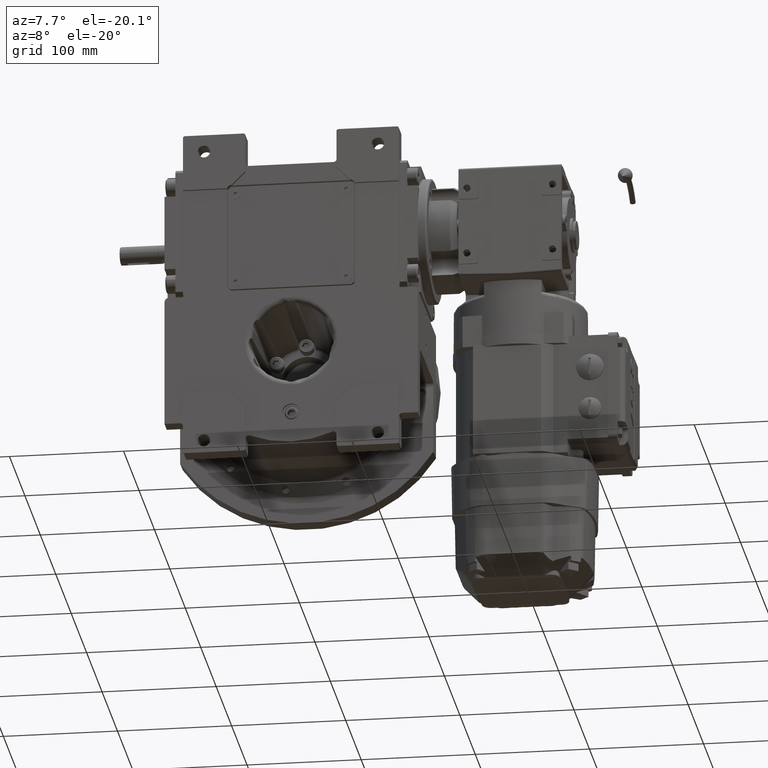
[diagram: clean part render]
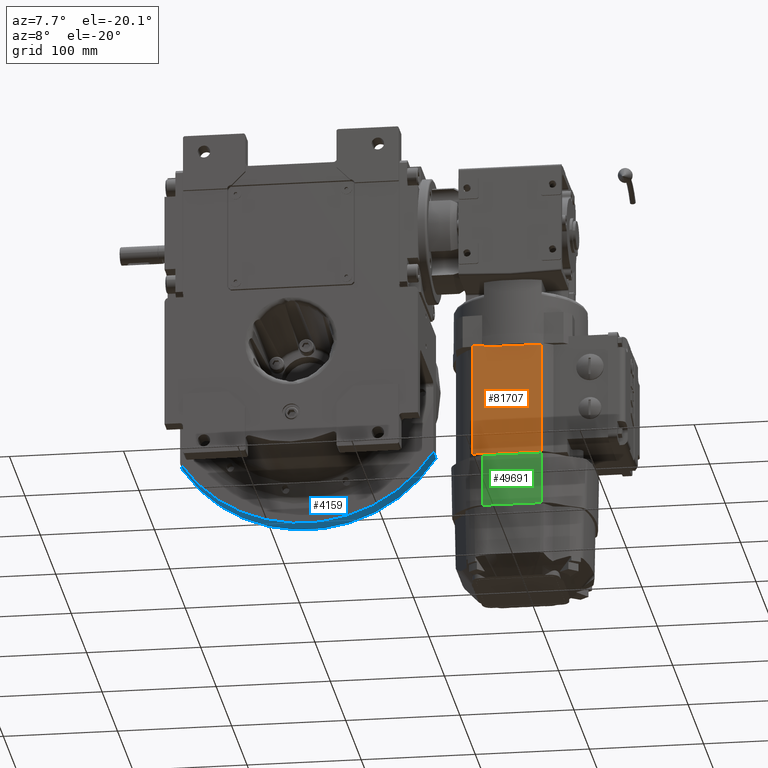
[diagram: same view with three faces highlighted in distinct colors, each labeled with its STEP entity id]
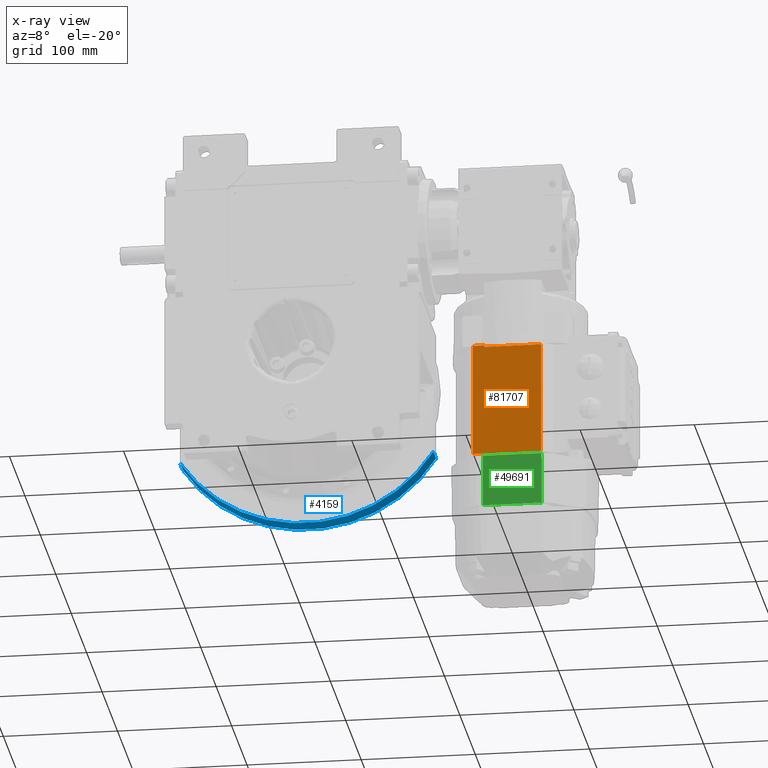
[diagram: x-ray of the same camera — body ghosted, the three highlighted faces saturated]
A machine part, auxiliary view with three faces highlighted in distinct colors.
The next image is the same camera in x-ray (body ghosted, the three faces saturated) — at least one of them is partly hidden behind the body in this view.
Their STEP definitions:

[orange] entity #81707 — the highlighted planar face has unit normal (0, -1, -0).
#1392 = EDGE_CURVE ( 'NONE', #52337, #42308, #55357, .T. ) ;
#6066 = DIRECTION ( 'NONE',  ( 5.117034172387234916E-29, 1.000000000000000000, -5.237516634546689532E-15 ) ) ;
#6656 = CARTESIAN_POINT ( 'NONE',  ( 109.1400000000005264, 14.74330623606700996, -30.50000000000106937 ) ) ;
#7150 = VECTOR ( 'NONE', #87734, 1000.000000000000000 ) ;
#7345 = CARTESIAN_POINT ( 'NONE',  ( 198.5000000000000000, -24.87468592766589737, -30.50000000000198241 ) ) ;
#10134 = ORIENTED_EDGE ( 'NONE', *, *, #82762, .F. ) ;
#13210 = CARTESIAN_POINT ( 'NONE',  ( 109.1400000000005264, 24.87468592766520104, -30.50000000000106937 ) ) ;
#14945 = CARTESIAN_POINT ( 'NONE',  ( 209.0000000000000284, -24.87468592766589737, -30.50000000000198241 ) ) ;
#16451 = AXIS2_PLACEMENT_3D ( 'NONE', #62746, #79475, #71865 ) ;
#17206 = PLANE ( 'NONE',  #16451 ) ;
#18074 = VERTEX_POINT ( 'NONE', #14945 ) ;
#18393 = EDGE_LOOP ( 'NONE', ( #72050, #41808, #96021, #70164, #20715, #10134 ) ) ;
#19399 = VERTEX_POINT ( 'NONE', #29891 ) ;
#20365 = CARTESIAN_POINT ( 'NONE',  ( 110.5000000000005258, -24.87468592766578368, -30.50000000000138556 ) ) ;
#20559 = CARTESIAN_POINT ( 'NONE',  ( 110.5000000000005258, -1.942890293094023946E-13, -30.50000000000138556 ) ) ;
#20715 = ORIENTED_EDGE ( 'NONE', *, *, #1392, .F. ) ;
#22246 = LINE ( 'NONE', #30335, #66729 ) ;
#27439 = CARTESIAN_POINT ( 'NONE',  ( 86.77932022500262121, 34.74330623606699930, -30.50000000000089528 ) ) ;
#27654 = DIRECTION ( 'NONE',  ( -6.743349448334850785E-29, -1.000000000000000000, 6.902124105170410006E-15 ) ) ;
#29891 = CARTESIAN_POINT ( 'NONE',  ( 109.1400000000005264, 34.74330623606699930, -30.50000000000106937 ) ) ;
#30225 = EDGE_CURVE ( 'NONE', #19399, #44856, #58339, .T. ) ;
#30335 = CARTESIAN_POINT ( 'NONE',  ( 209.0000000000000284, -24.87468592766589737, -30.50000000000198241 ) ) ;
#40367 = EDGE_CURVE ( 'NONE', #63242, #18074, #76698, .T. ) ;
#41808 = ORIENTED_EDGE ( 'NONE', *, *, #49503, .F. ) ;
#42308 = VERTEX_POINT ( 'NONE', #76927 ) ;
#44856 = VERTEX_POINT ( 'NONE', #55649 ) ;
#46605 = DIRECTION ( 'NONE',  ( -6.123233995736436933E-17, -1.000000000000000000, -3.469446951953607286E-16 ) ) ;
#49503 = EDGE_CURVE ( 'NONE', #18074, #44856, #22246, .T. ) ;
#50933 = LINE ( 'NONE', #20559, #92756 ) ;
#52337 = VERTEX_POINT ( 'NONE', #13210 ) ;
#55357 = LINE ( 'NONE', #94347, #72352 ) ;
#55649 = CARTESIAN_POINT ( 'NONE',  ( 209.0000000000000284, 34.74330623606699930, -30.50000000000198241 ) ) ;
#56351 = DIRECTION ( 'NONE',  ( 1.000000000000000000, 2.787682318313749644E-47, -9.769962616701377556E-15 ) ) ;
#58339 = LINE ( 'NONE', #27439, #7150 ) ;
#62746 = CARTESIAN_POINT ( 'NONE',  ( 110.5000000000005258, -1.942890293094023946E-13, -30.50000000000138556 ) ) ;
#63242 = VERTEX_POINT ( 'NONE', #20365 ) ;
#63255 = FACE_OUTER_BOUND ( 'NONE', #18393, .T. ) ;
#66729 = VECTOR ( 'NONE', #6066, 1000.000000000000000 ) ;
#67980 = EDGE_CURVE ( 'NONE', #42308, #63242, #50933, .T. ) ;
#69886 = VECTOR ( 'NONE', #46605, 1000.000000000000000 ) ;
#70164 = ORIENTED_EDGE ( 'NONE', *, *, #67980, .F. ) ;
#71865 = DIRECTION ( 'NONE',  ( -6.819737435751278812E-29, -1.000000000000000000, 6.980310676003190368E-15 ) ) ;
#72050 = ORIENTED_EDGE ( 'NONE', *, *, #30225, .T. ) ;
#72352 = VECTOR ( 'NONE', #56351, 1000.000000000000000 ) ;
#76698 = LINE ( 'NONE', #7345, #87119 ) ;
#76927 = CARTESIAN_POINT ( 'NONE',  ( 110.5000000000005258, 24.87468592766509090, -30.50000000000138556 ) ) ;
#79475 = DIRECTION ( 'NONE',  ( 9.831194956658745130E-15, -6.980310676003190368E-15, -1.000000000000000000 ) ) ;
#81707 = ADVANCED_FACE ( 'NONE', ( #63255 ), #17206, .T. ) ;
#82762 = EDGE_CURVE ( 'NONE', #19399, #52337, #83099, .T. ) ;
#83099 = LINE ( 'NONE', #6656, #69886 ) ;
#87119 = VECTOR ( 'NONE', #99971, 1000.000000000000000 ) ;
#87734 = DIRECTION ( 'NONE',  ( 1.000000000000000000, -6.123233995736769734E-17, -9.769962616701377556E-15 ) ) ;
#92756 = VECTOR ( 'NONE', #27654, 1000.000000000000000 ) ;
#94347 = CARTESIAN_POINT ( 'NONE',  ( 198.5000000000000000, 24.87468592766520104, -30.50000000000198241 ) ) ;
#96021 = ORIENTED_EDGE ( 'NONE', *, *, #40367, .F. ) ;
#99971 = DIRECTION ( 'NONE',  ( 1.000000000000000000, 2.787682318313749644E-47, -9.769962616701377556E-15 ) ) ;

[blue] entity #4159 — the highlighted cylindrical surface (partial cylindrical patch) has radius 132 mm, axis along (0, -1, 0).
#4159 = ADVANCED_FACE ( 'NONE', ( #49686 ), #79574, .T. ) ;
#10764 = LINE ( 'NONE', #42637, #65091 ) ;
#14022 = EDGE_CURVE ( 'NONE', #34425, #62261, #75397, .T. ) ;
#23489 = DIRECTION ( 'NONE',  ( 0.000000000000000000, 1.000000000000000000, 0.000000000000000000 ) ) ;
#25496 = CARTESIAN_POINT ( 'NONE',  ( -111.0000000000000000, 47.50000000000000000, -71.43528539874399996 ) ) ;
#29292 = CIRCLE ( 'NONE', #95580, 132.0000000000000853 ) ;
#32897 = CARTESIAN_POINT ( 'NONE',  ( 111.0000000000000000, 64.50000000000000000, -71.43528539874399996 ) ) ;
#34425 = VERTEX_POINT ( 'NONE', #48825 ) ;
#40573 = VERTEX_POINT ( 'NONE', #25496 ) ;
#41919 = EDGE_CURVE ( 'NONE', #34425, #40573, #85737, .T. ) ;
#42637 = CARTESIAN_POINT ( 'NONE',  ( -111.0000000000000000, 47.50000000000000000, -71.43528539874399996 ) ) ;
#43505 = ORIENTED_EDGE ( 'NONE', *, *, #61824, .T. ) ;
#47780 = CARTESIAN_POINT ( 'NONE',  ( 7.105427357600998703E-15, 64.50000000000000000, 0.000000000000000000 ) ) ;
#48825 = CARTESIAN_POINT ( 'NONE',  ( 111.0000000000000000, 47.50000000000000000, -71.43528539874399996 ) ) ;
#49686 = FACE_OUTER_BOUND ( 'NONE', #93021, .T. ) ;
#50426 = CARTESIAN_POINT ( 'NONE',  ( -111.0000000000000000, 64.50000000000000000, -71.43528539874399996 ) ) ;
#53624 = CARTESIAN_POINT ( 'NONE',  ( 111.0000000000000000, 47.50000000000000000, -71.43528539874399996 ) ) ;
#55770 = DIRECTION ( 'NONE',  ( 1.000000000000000000, 0.000000000000000000, 0.000000000000000000 ) ) ;
#57931 = VECTOR ( 'NONE', #60207, 1000.000000000000000 ) ;
#59250 = ORIENTED_EDGE ( 'NONE', *, *, #41919, .T. ) ;
#60207 = DIRECTION ( 'NONE',  ( 0.000000000000000000, 1.000000000000000000, 8.359326303060000099E-16 ) ) ;
#61329 = DIRECTION ( 'NONE',  ( 0.000000000000000000, 1.000000000000000000, 0.000000000000000000 ) ) ;
#61432 = AXIS2_PLACEMENT_3D ( 'NONE', #76045, #61329, #61836 ) ;
#61824 = EDGE_CURVE ( 'NONE', #40573, #85951, #10764, .T. ) ;
#61836 = DIRECTION ( 'NONE',  ( 0.8409090909090902732, 0.000000000000000000, -0.5411764045359401809 ) ) ;
#62261 = VERTEX_POINT ( 'NONE', #32897 ) ;
#64958 = EDGE_CURVE ( 'NONE', #62261, #85951, #29292, .T. ) ;
#65091 = VECTOR ( 'NONE', #72523, 1000.000000000000000 ) ;
#72523 = DIRECTION ( 'NONE',  ( 0.000000000000000000, 1.000000000000000000, 0.000000000000000000 ) ) ;
#75397 = LINE ( 'NONE', #53624, #57931 ) ;
#76045 = CARTESIAN_POINT ( 'NONE',  ( 0.000000000000000000, 47.50000000000000000, 4.263256414560599853E-14 ) ) ;
#79574 = CYLINDRICAL_SURFACE ( 'NONE', #92290, 132.0000000000000000 ) ;
#80576 = CARTESIAN_POINT ( 'NONE',  ( -4.517455316885850268E-28, -53.50000000000000000, 0.000000000000000000 ) ) ;
#85737 = CIRCLE ( 'NONE', #61432, 131.9999999999999716 ) ;
#85774 = DIRECTION ( 'NONE',  ( 0.8409090909090906063, 0.000000000000000000, -0.5411764045359397368 ) ) ;
#85951 = VERTEX_POINT ( 'NONE', #50426 ) ;
#86180 = DIRECTION ( 'NONE',  ( 0.000000000000000000, -1.000000000000000000, 0.000000000000000000 ) ) ;
#92290 = AXIS2_PLACEMENT_3D ( 'NONE', #80576, #86180, #55770 ) ;
#93021 = EDGE_LOOP ( 'NONE', ( #43505, #95008, #96411, #59250 ) ) ;
#95008 = ORIENTED_EDGE ( 'NONE', *, *, #64958, .F. ) ;
#95580 = AXIS2_PLACEMENT_3D ( 'NONE', #47780, #23489, #85774 ) ;
#96411 = ORIENTED_EDGE ( 'NONE', *, *, #14022, .F. ) ;

[green] entity #49691 — the highlighted planar face has unit normal (-0, -0.9998, -0.0175).
#2644 = CARTESIAN_POINT ( 'NONE',  ( 212.5000000000000284, 25.71716352944158857, -34.50000000000174083 ) ) ;
#2999 = VECTOR ( 'NONE', #16962, 1000.000000000000114 ) ;
#3338 = CARTESIAN_POINT ( 'NONE',  ( 258.0000000000000000, -25.71716352944000761, -33.70579454576914458 ) ) ;
#3378 = VECTOR ( 'NONE', #82905, 1000.000000000000000 ) ;
#10083 = VECTOR ( 'NONE', #15353, 1000.000000000000000 ) ;
#11572 = DIRECTION ( 'NONE',  ( 0.01745240643729337182, 1.415962032037690380E-14, -0.9998476951563910475 ) ) ;
#12561 = PLANE ( 'NONE',  #57140 ) ;
#15353 = DIRECTION ( 'NONE',  ( 1.383600341001228305E-28, -1.000000000000000000, -1.416177722764280162E-14 ) ) ;
#16962 = DIRECTION ( 'NONE',  ( -0.9998476951563913806, 1.032174564288520367E-15, -0.01745240643727373475 ) ) ;
#18850 = DIRECTION ( 'NONE',  ( -0.9998476951563913806, -7.520999021318292986E-15, -0.01745240643727373475 ) ) ;
#20159 = FACE_OUTER_BOUND ( 'NONE', #31959, .T. ) ;
#20512 = VECTOR ( 'NONE', #18850, 1000.000000000000114 ) ;
#22451 = LINE ( 'NONE', #37118, #10083 ) ;
#23537 = ORIENTED_EDGE ( 'NONE', *, *, #64467, .T. ) ;
#25535 = LINE ( 'NONE', #40747, #2999 ) ;
#31959 = EDGE_LOOP ( 'NONE', ( #74788, #50282, #23537, #91755 ) ) ;
#34782 = EDGE_CURVE ( 'NONE', #70743, #42942, #65882, .T. ) ;
#35428 = EDGE_CURVE ( 'NONE', #37842, #84637, #25535, .T. ) ;
#37118 = CARTESIAN_POINT ( 'NONE',  ( 258.0000000000000000, 25.52992269956630267, -33.70579454576813561 ) ) ;
#37842 = VERTEX_POINT ( 'NONE', #3338 ) ;
#38310 = CARTESIAN_POINT ( 'NONE',  ( 212.5000000000000284, 25.52992269956630267, -34.50000000000174083 ) ) ;
#40747 = CARTESIAN_POINT ( 'NONE',  ( 212.5000000000000284, -25.71716352944000761, -34.50000000000254374 ) ) ;
#42942 = VERTEX_POINT ( 'NONE', #78674 ) ;
#49691 = ADVANCED_FACE ( 'NONE', ( #20159 ), #12561, .T. ) ;
#50282 = ORIENTED_EDGE ( 'NONE', *, *, #35428, .T. ) ;
#51010 = DIRECTION ( 'NONE',  ( 1.383600341001226287E-28, -1.000000000000000000, -1.416177722764278111E-14 ) ) ;
#57140 = AXIS2_PLACEMENT_3D ( 'NONE', #87526, #11572, #51010 ) ;
#64467 = EDGE_CURVE ( 'NONE', #84637, #42942, #100070, .T. ) ;
#65882 = LINE ( 'NONE', #2644, #20512 ) ;
#70743 = VERTEX_POINT ( 'NONE', #93007 ) ;
#74788 = ORIENTED_EDGE ( 'NONE', *, *, #82376, .T. ) ;
#78674 = CARTESIAN_POINT ( 'NONE',  ( 212.5000000000000284, 25.71716352944158857, -34.50000000000174083 ) ) ;
#82376 = EDGE_CURVE ( 'NONE', #70743, #37842, #22451, .T. ) ;
#82905 = DIRECTION ( 'NONE',  ( -1.383600341001228305E-28, 1.000000000000000000, 1.416177722764280162E-14 ) ) ;
#84637 = VERTEX_POINT ( 'NONE', #90379 ) ;
#87526 = CARTESIAN_POINT ( 'NONE',  ( 212.5000000000000284, -25.71716352944000761, -34.50000000000254374 ) ) ;
#90379 = CARTESIAN_POINT ( 'NONE',  ( 212.5000000000000284, -25.71716352944000761, -34.50000000000254374 ) ) ;
#91755 = ORIENTED_EDGE ( 'NONE', *, *, #34782, .F. ) ;
#93007 = CARTESIAN_POINT ( 'NONE',  ( 258.0000000000000000, 25.71716352944189410, -33.70579454576813561 ) ) ;
#100070 = LINE ( 'NONE', #38310, #3378 ) ;